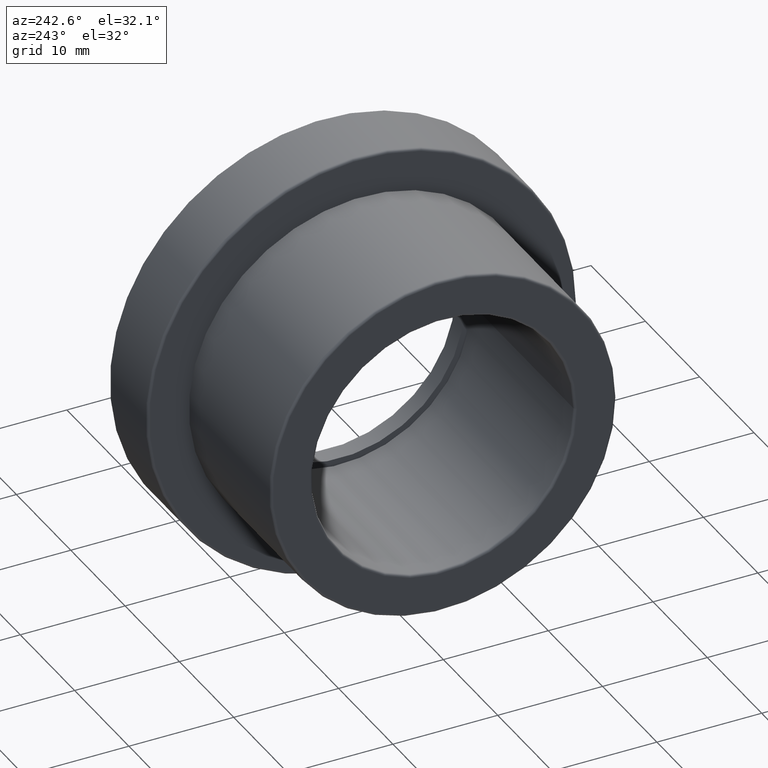
[diagram: clean part render]
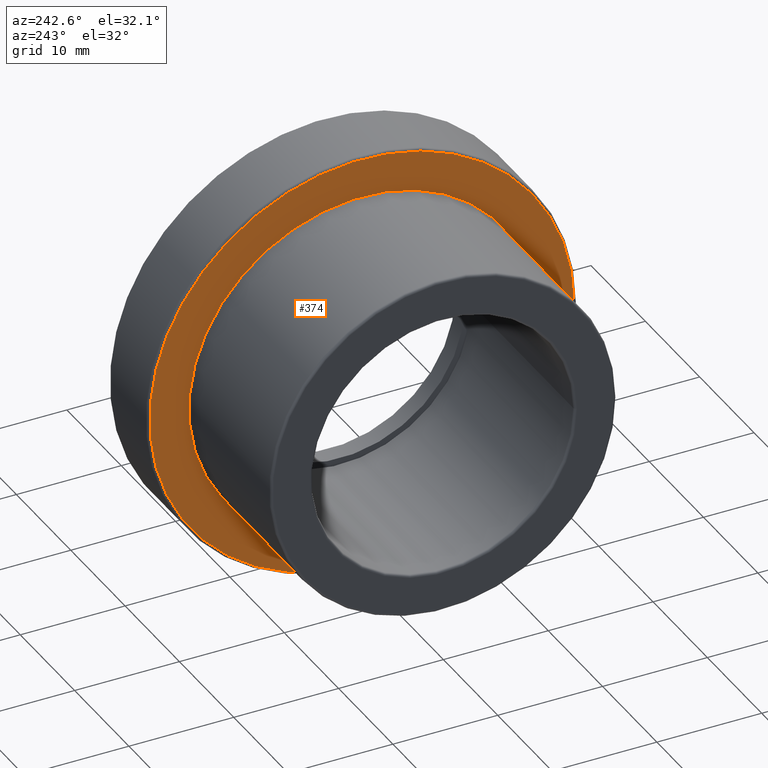
[diagram: same view with one face highlighted and labeled with its STEP entity id]
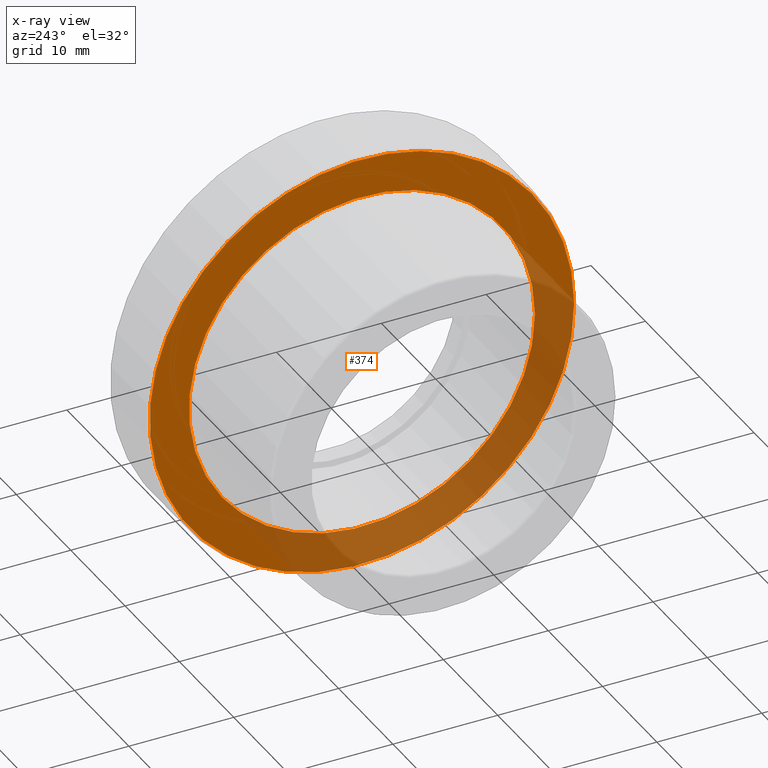
[diagram: x-ray of the same camera — body ghosted, the highlighted face saturated]
A machine part, auxiliary view. The second image highlights one B-rep face of the part: STEP entity #374.
The next image is the same camera in x-ray: the body ghosted, the highlighted face saturated — about 36% of this face is hidden behind the body in this view.
In plain terms, the highlighted planar face has unit normal (-1, 0, 0).
Its self-contained STEP definition (entity closure, byte-faithful):
#31=PLANE('',#440);
#62=FACE_BOUND('',#158,.T.);
#95=FACE_OUTER_BOUND('',#157,.T.);
#157=EDGE_LOOP('',(#322));
#158=EDGE_LOOP('',(#323));
#195=CIRCLE('',#439,20.25);
#196=CIRCLE('',#441,16.5);
#228=VERTEX_POINT('',#670);
#229=VERTEX_POINT('',#673);
#261=EDGE_CURVE('',#228,#228,#195,.T.);
#262=EDGE_CURVE('',#229,#229,#196,.T.);
#322=ORIENTED_EDGE('',*,*,#261,.F.);
#323=ORIENTED_EDGE('',*,*,#262,.F.);
#374=ADVANCED_FACE('',(#95,#62),#31,.T.);
#439=AXIS2_PLACEMENT_3D('',#671,#566,#567);
#440=AXIS2_PLACEMENT_3D('',#672,#568,#569);
#441=AXIS2_PLACEMENT_3D('',#674,#570,#571);
#566=DIRECTION('center_axis',(1.,0.,0.));
#567=DIRECTION('ref_axis',(0.,1.,6.12323399573677E-17));
#568=DIRECTION('center_axis',(-1.,0.,0.));
#569=DIRECTION('ref_axis',(0.,0.,1.));
#570=DIRECTION('center_axis',(-1.,0.,0.));
#571=DIRECTION('ref_axis',(0.,0.,1.));
#670=CARTESIAN_POINT('',(15.,-20.25,-3.71986465241009E-15));
#671=CARTESIAN_POINT('Origin',(15.,0.,0.));
#672=CARTESIAN_POINT('Origin',(15.,-16.5,0.));
#673=CARTESIAN_POINT('',(15.,-16.5,0.));
#674=CARTESIAN_POINT('Origin',(15.,0.,0.));